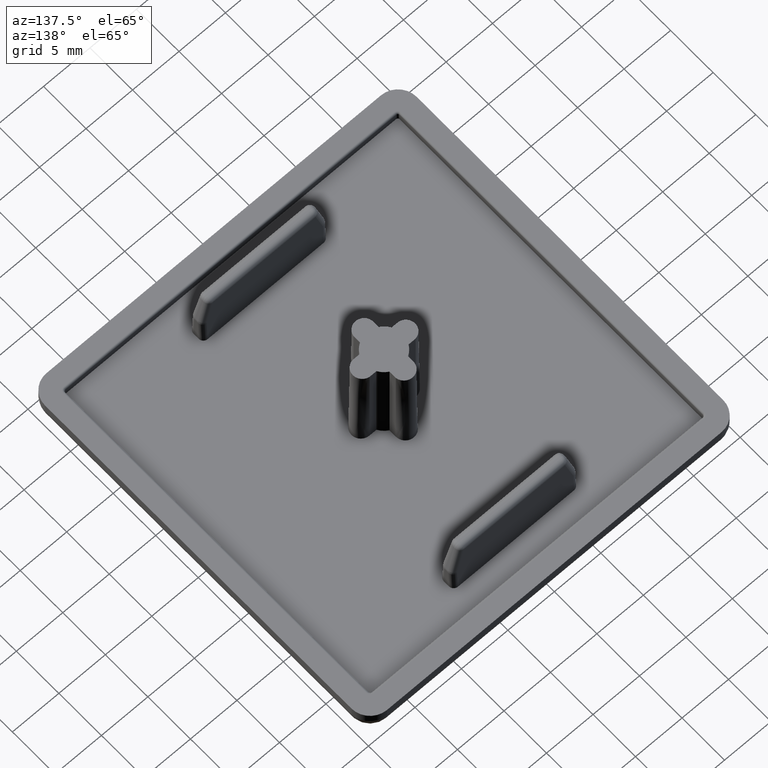
[diagram: clean part render]
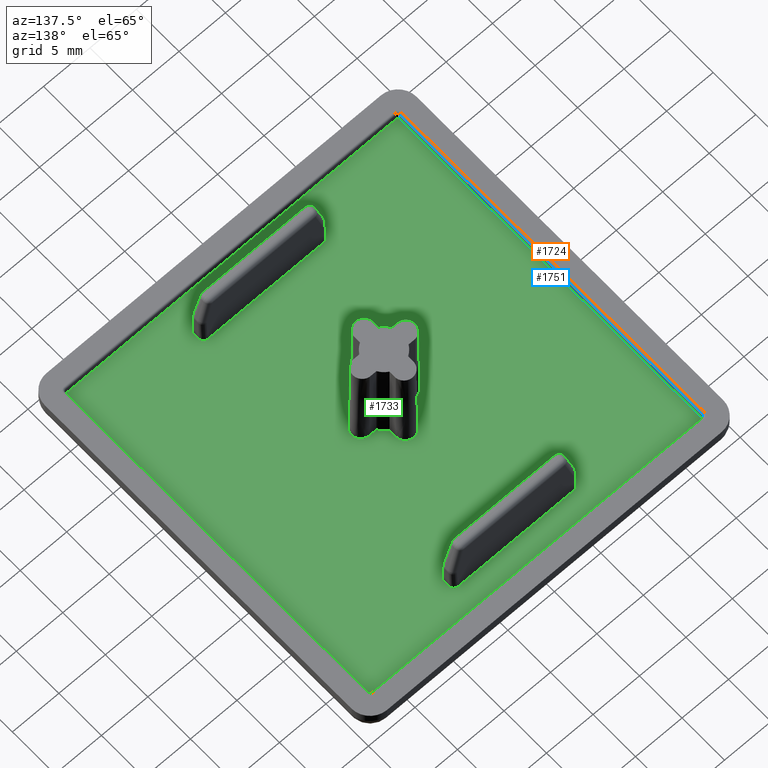
[diagram: same view with three faces highlighted in distinct colors, each labeled with its STEP entity id]
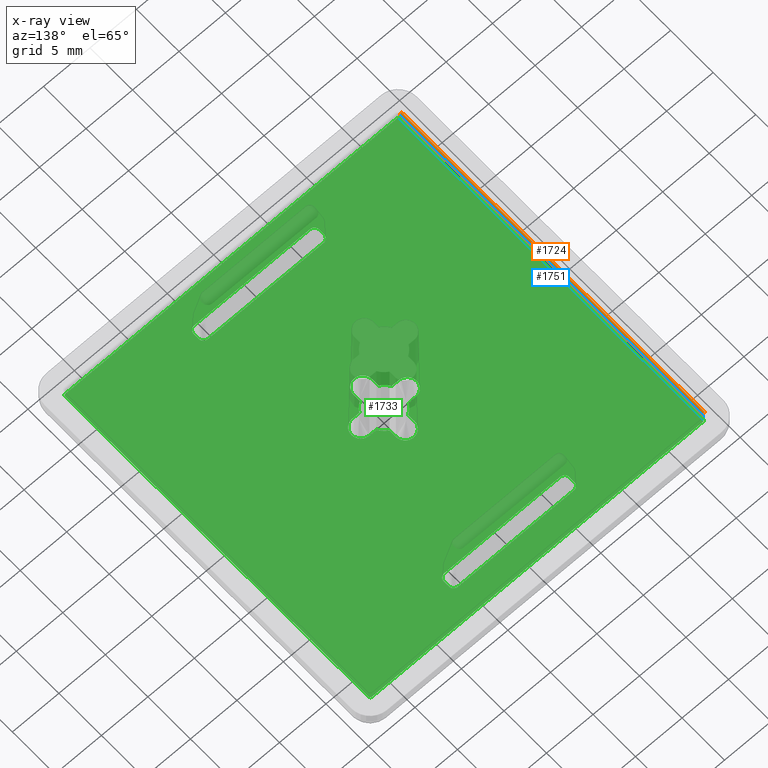
[diagram: x-ray of the same camera — body ghosted, the three highlighted faces saturated]
A machine part, auxiliary view with three faces highlighted in distinct colors.
The next image is the same camera in x-ray (body ghosted, the three faces saturated) — at least one of them is partly hidden behind the body in this view.
Their STEP definitions:

[orange] entity #1724 — the highlighted cylindrical surface (edge-blend (fillet) strip) has radius 0.2 mm, axis along (0, 1, 0).
#161=LINE('',#3206,#297);
#162=LINE('',#3207,#298);
#297=VECTOR('',#2361,35.6);
#298=VECTOR('',#2362,35.6);
#365=CYLINDRICAL_SURFACE('',#1908,0.2);
#476=FACE_OUTER_BOUND('',#586,.T.);
#586=EDGE_LOOP('',(#1465,#1466,#1467,#1468));
#686=CIRCLE('',#1900,0.2);
#690=CIRCLE('',#1905,0.2);
#842=VERTEX_POINT('',#3189);
#843=VERTEX_POINT('',#3191);
#845=VERTEX_POINT('',#3197);
#847=VERTEX_POINT('',#3200);
#1062=EDGE_CURVE('',#843,#842,#686,.T.);
#1066=EDGE_CURVE('',#847,#845,#690,.T.);
#1069=EDGE_CURVE('',#842,#847,#161,.T.);
#1070=EDGE_CURVE('',#845,#843,#162,.T.);
#1465=ORIENTED_EDGE('',*,*,#1062,.T.);
#1466=ORIENTED_EDGE('',*,*,#1069,.T.);
#1467=ORIENTED_EDGE('',*,*,#1066,.T.);
#1468=ORIENTED_EDGE('',*,*,#1070,.T.);
#1724=ADVANCED_FACE('',(#476),#365,.T.);
#1900=AXIS2_PLACEMENT_3D('',#3192,#2343,#2344);
#1905=AXIS2_PLACEMENT_3D('',#3201,#2353,#2354);
#1908=AXIS2_PLACEMENT_3D('',#3205,#2359,#2360);
#2343=DIRECTION('center_axis',(0.,-1.,0.));
#2344=DIRECTION('ref_axis',(1.,0.,0.));
#2353=DIRECTION('center_axis',(0.,1.,0.));
#2354=DIRECTION('ref_axis',(0.,0.,1.));
#2359=DIRECTION('center_axis',(0.,1.,0.));
#2360=DIRECTION('ref_axis',(0.707106781186548,0.,0.707106781186548));
#2361=DIRECTION('',(0.,-1.,0.));
#2362=DIRECTION('',(0.,1.,0.));
#3189=CARTESIAN_POINT('',(-18.2,17.8,1.5));
#3191=CARTESIAN_POINT('',(-18.,17.8,1.3));
#3192=CARTESIAN_POINT('Origin',(-18.2,17.8,1.3));
#3197=CARTESIAN_POINT('',(-18.,-17.8,1.3));
#3200=CARTESIAN_POINT('',(-18.2,-17.8,1.5));
#3201=CARTESIAN_POINT('Origin',(-18.2,-17.8,1.3));
#3205=CARTESIAN_POINT('Origin',(-18.2,-9.,1.3));
#3206=CARTESIAN_POINT('',(-18.2,-9.,1.5));
#3207=CARTESIAN_POINT('',(-18.,-9.,1.3));

[blue] entity #1751 — the highlighted planar face has unit normal (-1, 0, 0).
#61=PLANE('',#1955);
#162=LINE('',#3207,#298);
#165=LINE('',#3215,#301);
#168=LINE('',#3222,#304);
#180=LINE('',#3246,#316);
#298=VECTOR('',#2362,35.6);
#301=VECTOR('',#2371,0.8);
#304=VECTOR('',#2378,0.8);
#316=VECTOR('',#2406,35.6);
#503=FACE_OUTER_BOUND('',#617,.T.);
#617=EDGE_LOOP('',(#1617,#1618,#1619,#1620));
#843=VERTEX_POINT('',#3191);
#845=VERTEX_POINT('',#3197);
#849=VERTEX_POINT('',#3212);
#852=VERTEX_POINT('',#3219);
#1070=EDGE_CURVE('',#845,#843,#162,.T.);
#1074=EDGE_CURVE('',#849,#845,#165,.T.);
#1078=EDGE_CURVE('',#843,#852,#168,.T.);
#1092=EDGE_CURVE('',#849,#852,#180,.T.);
#1617=ORIENTED_EDGE('',*,*,#1074,.F.);
#1618=ORIENTED_EDGE('',*,*,#1092,.T.);
#1619=ORIENTED_EDGE('',*,*,#1078,.F.);
#1620=ORIENTED_EDGE('',*,*,#1070,.F.);
#1751=ADVANCED_FACE('',(#503),#61,.F.);
#1955=AXIS2_PLACEMENT_3D('',#3320,#2493,#2494);
#2362=DIRECTION('',(0.,1.,0.));
#2371=DIRECTION('',(0.,0.,1.));
#2378=DIRECTION('',(0.,0.,-1.));
#2406=DIRECTION('',(0.,1.,0.));
#2493=DIRECTION('center_axis',(-1.,0.,0.));
#2494=DIRECTION('ref_axis',(0.,1.,0.));
#3191=CARTESIAN_POINT('',(-18.,17.8,1.3));
#3197=CARTESIAN_POINT('',(-18.,-17.8,1.3));
#3207=CARTESIAN_POINT('',(-18.,-9.,1.3));
#3212=CARTESIAN_POINT('',(-18.,-17.8,0.5));
#3215=CARTESIAN_POINT('',(-18.,-17.8,1.5));
#3219=CARTESIAN_POINT('',(-18.,17.8,0.5));
#3222=CARTESIAN_POINT('',(-18.,17.8,1.5));
#3246=CARTESIAN_POINT('',(-18.,-18.,0.5));
#3320=CARTESIAN_POINT('Origin',(-18.,-18.,1.5));

[green] entity #1733 — the highlighted planar face has unit normal (0, 0, 1).
#15=FACE_BOUND('',#596,.T.);
#16=FACE_BOUND('',#597,.T.);
#17=FACE_BOUND('',#598,.T.);
#23=B_SPLINE_CURVE_WITH_KNOTS('',3,(#2931,#2932,#2933,#2934,#2935,#2936,
#2937),.UNSPECIFIED.,.F.,.F.,(4,1,1,1,4),(-1.,-0.714285714285714,-0.571428571428571,
-0.285714285714286,0.),.UNSPECIFIED.);
#24=B_SPLINE_CURVE_WITH_KNOTS('',3,(#2961,#2962,#2963,#2964),
 .UNSPECIFIED.,.F.,.F.,(4,4),(-1.,0.),.UNSPECIFIED.);
#25=B_SPLINE_CURVE_WITH_KNOTS('',3,(#2999,#3000,#3001,#3002,#3003,#3004,
#3005),.UNSPECIFIED.,.F.,.F.,(4,1,1,1,4),(-1.,-0.714285714285714,-0.571428571428571,
-0.285714285714286,0.),.UNSPECIFIED.);
#26=B_SPLINE_CURVE_WITH_KNOTS('',3,(#3028,#3029,#3030,#3031),
 .UNSPECIFIED.,.F.,.F.,(4,4),(-1.,0.),.UNSPECIFIED.);
#27=B_SPLINE_CURVE_WITH_KNOTS('',3,(#3066,#3067,#3068,#3069,#3070,#3071,
#3072),.UNSPECIFIED.,.F.,.F.,(4,1,1,1,4),(-1.,-0.714285714285714,-0.571428571428571,
-0.285714285714286,0.),.UNSPECIFIED.);
#28=B_SPLINE_CURVE_WITH_KNOTS('',3,(#3095,#3096,#3097,#3098),
 .UNSPECIFIED.,.F.,.F.,(4,4),(-1.,0.),.UNSPECIFIED.);
#29=B_SPLINE_CURVE_WITH_KNOTS('',3,(#3133,#3134,#3135,#3136,#3137,#3138,
#3139),.UNSPECIFIED.,.F.,.F.,(4,1,1,1,4),(-1.,-0.714285714285714,-0.571428571428571,
-0.285714285714286,0.),.UNSPECIFIED.);
#30=B_SPLINE_CURVE_WITH_KNOTS('',3,(#3162,#3163,#3164,#3165),
 .UNSPECIFIED.,.F.,.F.,(4,4),(-1.,0.),.UNSPECIFIED.);
#55=PLANE('',#1921);
#93=LINE('',#2675,#229);
#94=LINE('',#2677,#230);
#123=LINE('',#2854,#259);
#124=LINE('',#2856,#260);
#125=LINE('',#2861,#261);
#126=LINE('',#2863,#262);
#127=LINE('',#2865,#263);
#128=LINE('',#2867,#264);
#139=LINE('',#2942,#275);
#142=LINE('',#2968,#278);
#145=LINE('',#3009,#281);
#148=LINE('',#3035,#284);
#151=LINE('',#3076,#287);
#154=LINE('',#3102,#290);
#157=LINE('',#3143,#293);
#160=LINE('',#3168,#296);
#177=LINE('',#3242,#313);
#178=LINE('',#3244,#314);
#179=LINE('',#3245,#315);
#180=LINE('',#3246,#316);
#229=VECTOR('',#2091,12.5);
#230=VECTOR('',#2094,0.599297122018729);
#259=VECTOR('',#2231,12.5);
#260=VECTOR('',#2234,0.599297122018738);
#261=VECTOR('',#2243,12.5);
#262=VECTOR('',#2246,12.5);
#263=VECTOR('',#2249,0.599297122018732);
#264=VECTOR('',#2252,0.599297122018734);
#275=VECTOR('',#2283,0.767949192431123);
#278=VECTOR('',#2288,0.768509137680537);
#281=VECTOR('',#2293,0.767389594805941);
#284=VECTOR('',#2298,0.767949192431124);
#287=VECTOR('',#2303,0.767949192431125);
#290=VECTOR('',#2308,0.76738959480594);
#293=VECTOR('',#2313,0.768509137680537);
#296=VECTOR('',#2318,0.767949192431124);
#313=VECTOR('',#2401,35.6);
#314=VECTOR('',#2404,35.6);
#315=VECTOR('',#2405,35.6);
#316=VECTOR('',#2406,35.6);
#485=FACE_OUTER_BOUND('',#595,.T.);
#595=EDGE_LOOP('',(#1501,#1502,#1503,#1504,#1505,#1506,#1507,#1508));
#596=EDGE_LOOP('',(#1509,#1510,#1511,#1512,#1513,#1514,#1515,#1516));
#597=EDGE_LOOP('',(#1517,#1518,#1519,#1520,#1521,#1522,#1523,#1524));
#598=EDGE_LOOP('',(#1525,#1526,#1527,#1528,#1529,#1530,#1531,#1532,#1533,
#1534,#1535,#1536,#1537,#1538,#1539,#1540));
#693=CIRCLE('',#1911,0.2);
#694=CIRCLE('',#1913,0.2);
#695=CIRCLE('',#1917,0.2);
#696=CIRCLE('',#1919,0.2);
#717=ELLIPSE('',#1775,0.500351438990636,0.5);
#718=ELLIPSE('',#1800,0.500351438990636,0.5);
#719=ELLIPSE('',#1804,0.500351438990636,0.5);
#720=ELLIPSE('',#1806,0.500351438990636,0.5);
#725=ELLIPSE('',#1830,0.500351438990636,0.5);
#726=ELLIPSE('',#1853,0.500351438990636,0.5);
#727=ELLIPSE('',#1859,0.500351438990636,0.5);
#728=ELLIPSE('',#1861,0.500351438990636,0.5);
#744=VERTEX_POINT('',#2586);
#745=VERTEX_POINT('',#2587);
#759=VERTEX_POINT('',#2651);
#760=VERTEX_POINT('',#2652);
#761=VERTEX_POINT('',#2663);
#762=VERTEX_POINT('',#2664);
#763=VERTEX_POINT('',#2669);
#764=VERTEX_POINT('',#2670);
#780=VERTEX_POINT('',#2765);
#781=VERTEX_POINT('',#2766);
#795=VERTEX_POINT('',#2824);
#796=VERTEX_POINT('',#2825);
#797=VERTEX_POINT('',#2842);
#798=VERTEX_POINT('',#2843);
#799=VERTEX_POINT('',#2848);
#800=VERTEX_POINT('',#2849);
#817=VERTEX_POINT('',#2929);
#818=VERTEX_POINT('',#2930);
#819=VERTEX_POINT('',#2941);
#820=VERTEX_POINT('',#2960);
#821=VERTEX_POINT('',#2967);
#822=VERTEX_POINT('',#2998);
#823=VERTEX_POINT('',#3008);
#824=VERTEX_POINT('',#3027);
#825=VERTEX_POINT('',#3034);
#826=VERTEX_POINT('',#3065);
#827=VERTEX_POINT('',#3075);
#828=VERTEX_POINT('',#3094);
#829=VERTEX_POINT('',#3101);
#830=VERTEX_POINT('',#3132);
#831=VERTEX_POINT('',#3142);
#832=VERTEX_POINT('',#3161);
#849=VERTEX_POINT('',#3212);
#850=VERTEX_POINT('',#3213);
#851=VERTEX_POINT('',#3218);
#852=VERTEX_POINT('',#3219);
#853=VERTEX_POINT('',#3230);
#854=VERTEX_POINT('',#3231);
#855=VERTEX_POINT('',#3236);
#856=VERTEX_POINT('',#3237);
#894=EDGE_CURVE('',#744,#745,#717,.F.);
#924=EDGE_CURVE('',#759,#760,#718,.F.);
#931=EDGE_CURVE('',#761,#762,#719,.F.);
#934=EDGE_CURVE('',#763,#764,#720,.F.);
#937=EDGE_CURVE('',#759,#745,#93,.T.);
#938=EDGE_CURVE('',#744,#764,#94,.T.);
#956=EDGE_CURVE('',#780,#781,#725,.F.);
#982=EDGE_CURVE('',#795,#796,#726,.F.);
#993=EDGE_CURVE('',#797,#798,#727,.F.);
#996=EDGE_CURVE('',#799,#800,#728,.F.);
#999=EDGE_CURVE('',#795,#781,#123,.T.);
#1000=EDGE_CURVE('',#780,#800,#124,.T.);
#1001=EDGE_CURVE('',#799,#798,#125,.T.);
#1002=EDGE_CURVE('',#763,#762,#126,.T.);
#1003=EDGE_CURVE('',#761,#760,#127,.T.);
#1004=EDGE_CURVE('',#797,#796,#128,.T.);
#1021=EDGE_CURVE('',#817,#818,#23,.T.);
#1024=EDGE_CURVE('',#819,#817,#139,.T.);
#1026=EDGE_CURVE('',#820,#819,#24,.T.);
#1028=EDGE_CURVE('',#821,#820,#142,.T.);
#1030=EDGE_CURVE('',#822,#821,#25,.T.);
#1032=EDGE_CURVE('',#823,#822,#145,.T.);
#1034=EDGE_CURVE('',#824,#823,#26,.T.);
#1036=EDGE_CURVE('',#825,#824,#148,.T.);
#1038=EDGE_CURVE('',#826,#825,#27,.T.);
#1040=EDGE_CURVE('',#827,#826,#151,.T.);
#1042=EDGE_CURVE('',#828,#827,#28,.T.);
#1044=EDGE_CURVE('',#829,#828,#154,.T.);
#1046=EDGE_CURVE('',#830,#829,#29,.T.);
#1048=EDGE_CURVE('',#831,#830,#157,.T.);
#1050=EDGE_CURVE('',#832,#831,#30,.T.);
#1052=EDGE_CURVE('',#818,#832,#160,.T.);
#1073=EDGE_CURVE('',#849,#850,#693,.T.);
#1076=EDGE_CURVE('',#851,#852,#694,.T.);
#1083=EDGE_CURVE('',#853,#854,#695,.T.);
#1086=EDGE_CURVE('',#855,#856,#696,.T.);
#1089=EDGE_CURVE('',#853,#850,#177,.T.);
#1090=EDGE_CURVE('',#855,#854,#178,.T.);
#1091=EDGE_CURVE('',#851,#856,#179,.T.);
#1092=EDGE_CURVE('',#849,#852,#180,.T.);
#1501=ORIENTED_EDGE('',*,*,#1073,.T.);
#1502=ORIENTED_EDGE('',*,*,#1089,.F.);
#1503=ORIENTED_EDGE('',*,*,#1083,.T.);
#1504=ORIENTED_EDGE('',*,*,#1090,.F.);
#1505=ORIENTED_EDGE('',*,*,#1086,.T.);
#1506=ORIENTED_EDGE('',*,*,#1091,.F.);
#1507=ORIENTED_EDGE('',*,*,#1076,.T.);
#1508=ORIENTED_EDGE('',*,*,#1092,.F.);
#1509=ORIENTED_EDGE('',*,*,#1002,.T.);
#1510=ORIENTED_EDGE('',*,*,#931,.F.);
#1511=ORIENTED_EDGE('',*,*,#1003,.T.);
#1512=ORIENTED_EDGE('',*,*,#924,.F.);
#1513=ORIENTED_EDGE('',*,*,#937,.T.);
#1514=ORIENTED_EDGE('',*,*,#894,.F.);
#1515=ORIENTED_EDGE('',*,*,#938,.T.);
#1516=ORIENTED_EDGE('',*,*,#934,.F.);
#1517=ORIENTED_EDGE('',*,*,#999,.T.);
#1518=ORIENTED_EDGE('',*,*,#956,.F.);
#1519=ORIENTED_EDGE('',*,*,#1000,.T.);
#1520=ORIENTED_EDGE('',*,*,#996,.F.);
#1521=ORIENTED_EDGE('',*,*,#1001,.T.);
#1522=ORIENTED_EDGE('',*,*,#993,.F.);
#1523=ORIENTED_EDGE('',*,*,#1004,.T.);
#1524=ORIENTED_EDGE('',*,*,#982,.F.);
#1525=ORIENTED_EDGE('',*,*,#1021,.T.);
#1526=ORIENTED_EDGE('',*,*,#1052,.T.);
#1527=ORIENTED_EDGE('',*,*,#1050,.T.);
#1528=ORIENTED_EDGE('',*,*,#1048,.T.);
#1529=ORIENTED_EDGE('',*,*,#1046,.T.);
#1530=ORIENTED_EDGE('',*,*,#1044,.T.);
#1531=ORIENTED_EDGE('',*,*,#1042,.T.);
#1532=ORIENTED_EDGE('',*,*,#1040,.T.);
#1533=ORIENTED_EDGE('',*,*,#1038,.T.);
#1534=ORIENTED_EDGE('',*,*,#1036,.T.);
#1535=ORIENTED_EDGE('',*,*,#1034,.T.);
#1536=ORIENTED_EDGE('',*,*,#1032,.T.);
#1537=ORIENTED_EDGE('',*,*,#1030,.T.);
#1538=ORIENTED_EDGE('',*,*,#1028,.T.);
#1539=ORIENTED_EDGE('',*,*,#1026,.T.);
#1540=ORIENTED_EDGE('',*,*,#1024,.T.);
#1733=ADVANCED_FACE('',(#485,#15,#16,#17),#55,.T.);
#1775=AXIS2_PLACEMENT_3D('',#2588,#1999,#2000);
#1800=AXIS2_PLACEMENT_3D('',#2653,#2065,#2066);
#1804=AXIS2_PLACEMENT_3D('',#2665,#2079,#2080);
#1806=AXIS2_PLACEMENT_3D('',#2671,#2085,#2086);
#1830=AXIS2_PLACEMENT_3D('',#2767,#2139,#2140);
#1853=AXIS2_PLACEMENT_3D('',#2826,#2197,#2198);
#1859=AXIS2_PLACEMENT_3D('',#2844,#2219,#2220);
#1861=AXIS2_PLACEMENT_3D('',#2850,#2225,#2226);
#1911=AXIS2_PLACEMENT_3D('',#3214,#2369,#2370);
#1913=AXIS2_PLACEMENT_3D('',#3220,#2375,#2376);
#1917=AXIS2_PLACEMENT_3D('',#3232,#2389,#2390);
#1919=AXIS2_PLACEMENT_3D('',#3238,#2395,#2396);
#1921=AXIS2_PLACEMENT_3D('',#3243,#2402,#2403);
#1999=DIRECTION('center_axis',(0.,0.,-1.));
#2000=DIRECTION('ref_axis',(2.70426785219505E-15,-1.,0.));
#2065=DIRECTION('center_axis',(0.,0.,-1.));
#2066=DIRECTION('ref_axis',(-2.70426785219505E-15,-1.,0.));
#2079=DIRECTION('center_axis',(0.,0.,-1.));
#2080=DIRECTION('ref_axis',(-5.99792741576594E-14,1.,0.));
#2085=DIRECTION('center_axis',(0.,0.,-1.));
#2086=DIRECTION('ref_axis',(2.70426785219505E-15,1.,0.));
#2091=DIRECTION('',(-1.,-1.59863873296634E-16,0.));
#2094=DIRECTION('',(0.,1.,0.));
#2139=DIRECTION('center_axis',(0.,0.,-1.));
#2140=DIRECTION('ref_axis',(-1.26060486033092E-13,1.,0.));
#2197=DIRECTION('center_axis',(0.,0.,-1.));
#2198=DIRECTION('ref_axis',(1.26060486033092E-13,1.,0.));
#2219=DIRECTION('center_axis',(0.,0.,-1.));
#2220=DIRECTION('ref_axis',(2.70426785219505E-15,-1.,0.));
#2225=DIRECTION('center_axis',(0.,0.,-1.));
#2226=DIRECTION('ref_axis',(-2.70426785219505E-15,-1.,0.));
#2231=DIRECTION('',(1.,8.20922592604337E-16,0.));
#2234=DIRECTION('',(0.,-1.,0.));
#2243=DIRECTION('',(-1.,-4.88232910338369E-16,0.));
#2246=DIRECTION('',(1.,3.28369037041735E-16,0.));
#2249=DIRECTION('',(0.,-1.,0.));
#2252=DIRECTION('',(0.,1.,0.));
#2283=DIRECTION('',(1.,-7.22849268914839E-16,0.));
#2288=DIRECTION('',(0.,-1.,0.));
#2293=DIRECTION('',(0.,1.,0.));
#2298=DIRECTION('',(1.,1.8071231722871E-16,0.));
#2303=DIRECTION('',(-1.,-1.80712317228709E-16,0.));
#2308=DIRECTION('',(9.04220483424975E-16,1.,0.));
#2313=DIRECTION('',(-7.22322592009743E-16,-1.,0.));
#2318=DIRECTION('',(-1.,-5.42136951686128E-16,0.));
#2369=DIRECTION('center_axis',(0.,0.,1.));
#2370=DIRECTION('ref_axis',(-0.707106781186548,-0.707106781186548,0.));
#2375=DIRECTION('center_axis',(0.,0.,1.));
#2376=DIRECTION('ref_axis',(-0.707106781186548,0.707106781186548,0.));
#2389=DIRECTION('center_axis',(0.,0.,1.));
#2390=DIRECTION('ref_axis',(0.707106781186548,-0.707106781186548,0.));
#2395=DIRECTION('center_axis',(0.,0.,1.));
#2396=DIRECTION('ref_axis',(0.707106781186548,0.707106781186548,0.));
#2401=DIRECTION('',(-1.,0.,0.));
#2402=DIRECTION('center_axis',(0.,0.,1.));
#2403=DIRECTION('ref_axis',(1.,0.,0.));
#2404=DIRECTION('',(0.,-1.,0.));
#2405=DIRECTION('',(1.,0.,0.));
#2406=DIRECTION('',(0.,1.,0.));
#2586=CARTESIAN_POINT('',(-6.75,-14.9996485610094,0.5));
#2587=CARTESIAN_POINT('',(-6.25,-15.5,0.5));
#2588=CARTESIAN_POINT('Origin',(-6.25,-14.9996485610094,0.5));
#2651=CARTESIAN_POINT('',(6.25,-15.5,0.5));
#2652=CARTESIAN_POINT('',(6.75,-14.9996485610094,0.5));
#2653=CARTESIAN_POINT('Origin',(6.25,-14.9996485610094,0.5));
#2663=CARTESIAN_POINT('',(6.75,-14.4003514389906,0.5));
#2664=CARTESIAN_POINT('',(6.25,-13.9,0.5));
#2665=CARTESIAN_POINT('Origin',(6.25,-14.4003514389906,0.5));
#2669=CARTESIAN_POINT('',(-6.25,-13.9,0.5));
#2670=CARTESIAN_POINT('',(-6.75,-14.4003514389906,0.5));
#2671=CARTESIAN_POINT('Origin',(-6.25,-14.4003514389906,0.5));
#2675=CARTESIAN_POINT('',(3.375,-15.5,0.5));
#2677=CARTESIAN_POINT('',(-6.75,-7.75,0.5));
#2765=CARTESIAN_POINT('',(6.75,14.9996485610094,0.5));
#2766=CARTESIAN_POINT('',(6.25,15.5,0.5));
#2767=CARTESIAN_POINT('Origin',(6.25,14.9996485610094,0.5));
#2824=CARTESIAN_POINT('',(-6.25,15.5,0.5));
#2825=CARTESIAN_POINT('',(-6.75,14.9996485610094,0.5));
#2826=CARTESIAN_POINT('Origin',(-6.25,14.9996485610094,0.5));
#2842=CARTESIAN_POINT('',(-6.75,14.4003514389906,0.5));
#2843=CARTESIAN_POINT('',(-6.25,13.9,0.5));
#2844=CARTESIAN_POINT('Origin',(-6.25,14.4003514389906,0.5));
#2848=CARTESIAN_POINT('',(6.25,13.9,0.5));
#2849=CARTESIAN_POINT('',(6.75,14.4003514389906,0.5));
#2850=CARTESIAN_POINT('Origin',(6.25,14.4003514389906,0.5));
#2854=CARTESIAN_POINT('',(-3.37500000000001,15.5,0.5));
#2856=CARTESIAN_POINT('',(6.75,7.75,0.5));
#2861=CARTESIAN_POINT('',(3.375,13.9,0.5));
#2863=CARTESIAN_POINT('',(-3.375,-13.9,0.5));
#2865=CARTESIAN_POINT('',(6.75,-6.95,0.5));
#2867=CARTESIAN_POINT('',(-6.75,6.95,0.5));
#2929=CARTESIAN_POINT('',(2.5,1.,0.5));
#2930=CARTESIAN_POINT('',(2.5,-1.,0.5));
#2931=CARTESIAN_POINT('Ctrl Pts',(2.5,1.,0.5));
#2932=CARTESIAN_POINT('Ctrl Pts',(2.79919930034189,1.,0.5));
#2933=CARTESIAN_POINT('Ctrl Pts',(3.24085058425396,0.783983529754239,0.5));
#2934=CARTESIAN_POINT('Ctrl Pts',(3.57699010848645,0.0909847061596733,0.5));
#2935=CARTESIAN_POINT('Ctrl Pts',(3.39527338748974,-0.711134528034307,0.5));
#2936=CARTESIAN_POINT('Ctrl Pts',(2.79919930034189,-1.,0.5));
#2937=CARTESIAN_POINT('Ctrl Pts',(2.5,-1.,0.5));
#2941=CARTESIAN_POINT('',(1.73205080756888,1.,0.5));
#2942=CARTESIAN_POINT('',(1.25,1.,0.5));
#2960=CARTESIAN_POINT('',(1.00096955236749,1.7314906743131,0.5));
#2961=CARTESIAN_POINT('Ctrl Pts',(1.00096955236749,1.7314906743131,0.5));
#2962=CARTESIAN_POINT('Ctrl Pts',(1.30284855286304,1.55697533185244,0.5));
#2963=CARTESIAN_POINT('Ctrl Pts',(1.5577045029806,1.30197665765878,0.5));
#2964=CARTESIAN_POINT('Ctrl Pts',(1.73205080756888,1.,0.5));
#2967=CARTESIAN_POINT('',(1.00096955236749,2.49999981199363,0.5));
#2968=CARTESIAN_POINT('',(1.00096955236749,0.865745337156549,0.5));
#2998=CARTESIAN_POINT('',(-0.99903044763251,2.49999981199363,0.5));
#2999=CARTESIAN_POINT('Ctrl Pts',(-0.999030447632509,2.49999981199363,0.5));
#3000=CARTESIAN_POINT('Ctrl Pts',(-0.999030447632509,2.79919911233552,0.5));
#3001=CARTESIAN_POINT('Ctrl Pts',(-0.783013977386749,3.24085039624759,0.5));
#3002=CARTESIAN_POINT('Ctrl Pts',(-0.0900151537921825,3.57698992048009,
0.500000000000001));
#3003=CARTESIAN_POINT('Ctrl Pts',(0.712104080401798,3.39527319948338,0.500000000000001));
#3004=CARTESIAN_POINT('Ctrl Pts',(1.00096955236749,2.79919911233552,0.5));
#3005=CARTESIAN_POINT('Ctrl Pts',(1.00096955236749,2.49999981199363,0.5));
#3008=CARTESIAN_POINT('',(-0.99903044763251,1.73261021718769,0.5));
#3009=CARTESIAN_POINT('',(-0.99903044763251,1.24999990599682,0.5));
#3027=CARTESIAN_POINT('',(-1.73205080756888,1.,0.5));
#3028=CARTESIAN_POINT('Ctrl Pts',(-1.73205080756888,1.,0.5));
#3029=CARTESIAN_POINT('Ctrl Pts',(-1.55733132206138,1.30262302597128,0.5));
#3030=CARTESIAN_POINT('Ctrl Pts',(-1.30175121336458,1.55806013137102,0.5));
#3031=CARTESIAN_POINT('Ctrl Pts',(-0.99903044763251,1.73261021718769,0.5));
#3034=CARTESIAN_POINT('',(-2.5,0.999999999999999,0.5));
#3035=CARTESIAN_POINT('',(-0.866025403784439,1.,0.5));
#3065=CARTESIAN_POINT('',(-2.5,-1.,0.5));
#3066=CARTESIAN_POINT('Ctrl Pts',(-2.5,-1.,0.5));
#3067=CARTESIAN_POINT('Ctrl Pts',(-2.79919930034189,-1.,0.5));
#3068=CARTESIAN_POINT('Ctrl Pts',(-3.24085058425396,-0.783983529754239,
0.5));
#3069=CARTESIAN_POINT('Ctrl Pts',(-3.57699010848645,-0.0909847061596727,
0.5));
#3070=CARTESIAN_POINT('Ctrl Pts',(-3.39527338748974,0.711134528034307,0.5));
#3071=CARTESIAN_POINT('Ctrl Pts',(-2.79919930034189,0.999999999999999,0.5));
#3072=CARTESIAN_POINT('Ctrl Pts',(-2.5,0.999999999999999,0.5));
#3075=CARTESIAN_POINT('',(-1.73205080756888,-1.,0.5));
#3076=CARTESIAN_POINT('',(-1.25,-1.,0.5));
#3094=CARTESIAN_POINT('',(-0.999030447632508,-1.73261021718769,0.5));
#3095=CARTESIAN_POINT('Ctrl Pts',(-0.999030447632511,-1.73261021718769,
0.5));
#3096=CARTESIAN_POINT('Ctrl Pts',(-1.30175121336458,-1.55806013137102,0.5));
#3097=CARTESIAN_POINT('Ctrl Pts',(-1.55733132206138,-1.30262302597128,0.5));
#3098=CARTESIAN_POINT('Ctrl Pts',(-1.73205080756888,-1.,0.5));
#3101=CARTESIAN_POINT('',(-0.999030447632509,-2.49999981199363,0.5));
#3102=CARTESIAN_POINT('',(-0.999030447632508,-0.866305108593847,0.5));
#3132=CARTESIAN_POINT('',(1.00096955236749,-2.49999981199363,0.5));
#3133=CARTESIAN_POINT('Ctrl Pts',(1.00096955236749,-2.49999981199363,0.5));
#3134=CARTESIAN_POINT('Ctrl Pts',(1.00096955236749,-2.79919911233552,0.5));
#3135=CARTESIAN_POINT('Ctrl Pts',(0.784953082121731,-3.24085039624759,0.5));
#3136=CARTESIAN_POINT('Ctrl Pts',(0.0919542585271642,-3.57698992048009,
0.500000000000001));
#3137=CARTESIAN_POINT('Ctrl Pts',(-0.710164975666817,-3.39527319948338,
0.500000000000001));
#3138=CARTESIAN_POINT('Ctrl Pts',(-0.999030447632509,-2.79919911233552,
0.5));
#3139=CARTESIAN_POINT('Ctrl Pts',(-0.999030447632509,-2.49999981199363,
0.5));
#3142=CARTESIAN_POINT('',(1.00096955236749,-1.7314906743131,0.5));
#3143=CARTESIAN_POINT('',(1.00096955236749,-1.24999990599682,0.5));
#3161=CARTESIAN_POINT('',(1.73205080756888,-1.,0.5));
#3162=CARTESIAN_POINT('Ctrl Pts',(1.73205080756888,-1.,0.5));
#3163=CARTESIAN_POINT('Ctrl Pts',(1.5577045029806,-1.30197665765878,0.5));
#3164=CARTESIAN_POINT('Ctrl Pts',(1.30284855286304,-1.55697533185244,0.5));
#3165=CARTESIAN_POINT('Ctrl Pts',(1.00096955236749,-1.7314906743131,0.5));
#3168=CARTESIAN_POINT('',(0.866025403784439,-1.,0.5));
#3212=CARTESIAN_POINT('',(-18.,-17.8,0.5));
#3213=CARTESIAN_POINT('',(-17.8,-18.,0.5));
#3214=CARTESIAN_POINT('Origin',(-17.8,-17.8,0.5));
#3218=CARTESIAN_POINT('',(-17.8,18.,0.5));
#3219=CARTESIAN_POINT('',(-18.,17.8,0.5));
#3220=CARTESIAN_POINT('Origin',(-17.8,17.8,0.5));
#3230=CARTESIAN_POINT('',(17.8,-18.,0.5));
#3231=CARTESIAN_POINT('',(18.,-17.8,0.5));
#3232=CARTESIAN_POINT('Origin',(17.8,-17.8,0.5));
#3236=CARTESIAN_POINT('',(18.,17.8,0.5));
#3237=CARTESIAN_POINT('',(17.8,18.,0.5));
#3238=CARTESIAN_POINT('Origin',(17.8,17.8,0.5));
#3242=CARTESIAN_POINT('',(18.,-18.,0.5));
#3243=CARTESIAN_POINT('Origin',(0.,0.,0.5));
#3244=CARTESIAN_POINT('',(18.,18.,0.5));
#3245=CARTESIAN_POINT('',(-18.,18.,0.5));
#3246=CARTESIAN_POINT('',(-18.,-18.,0.5));